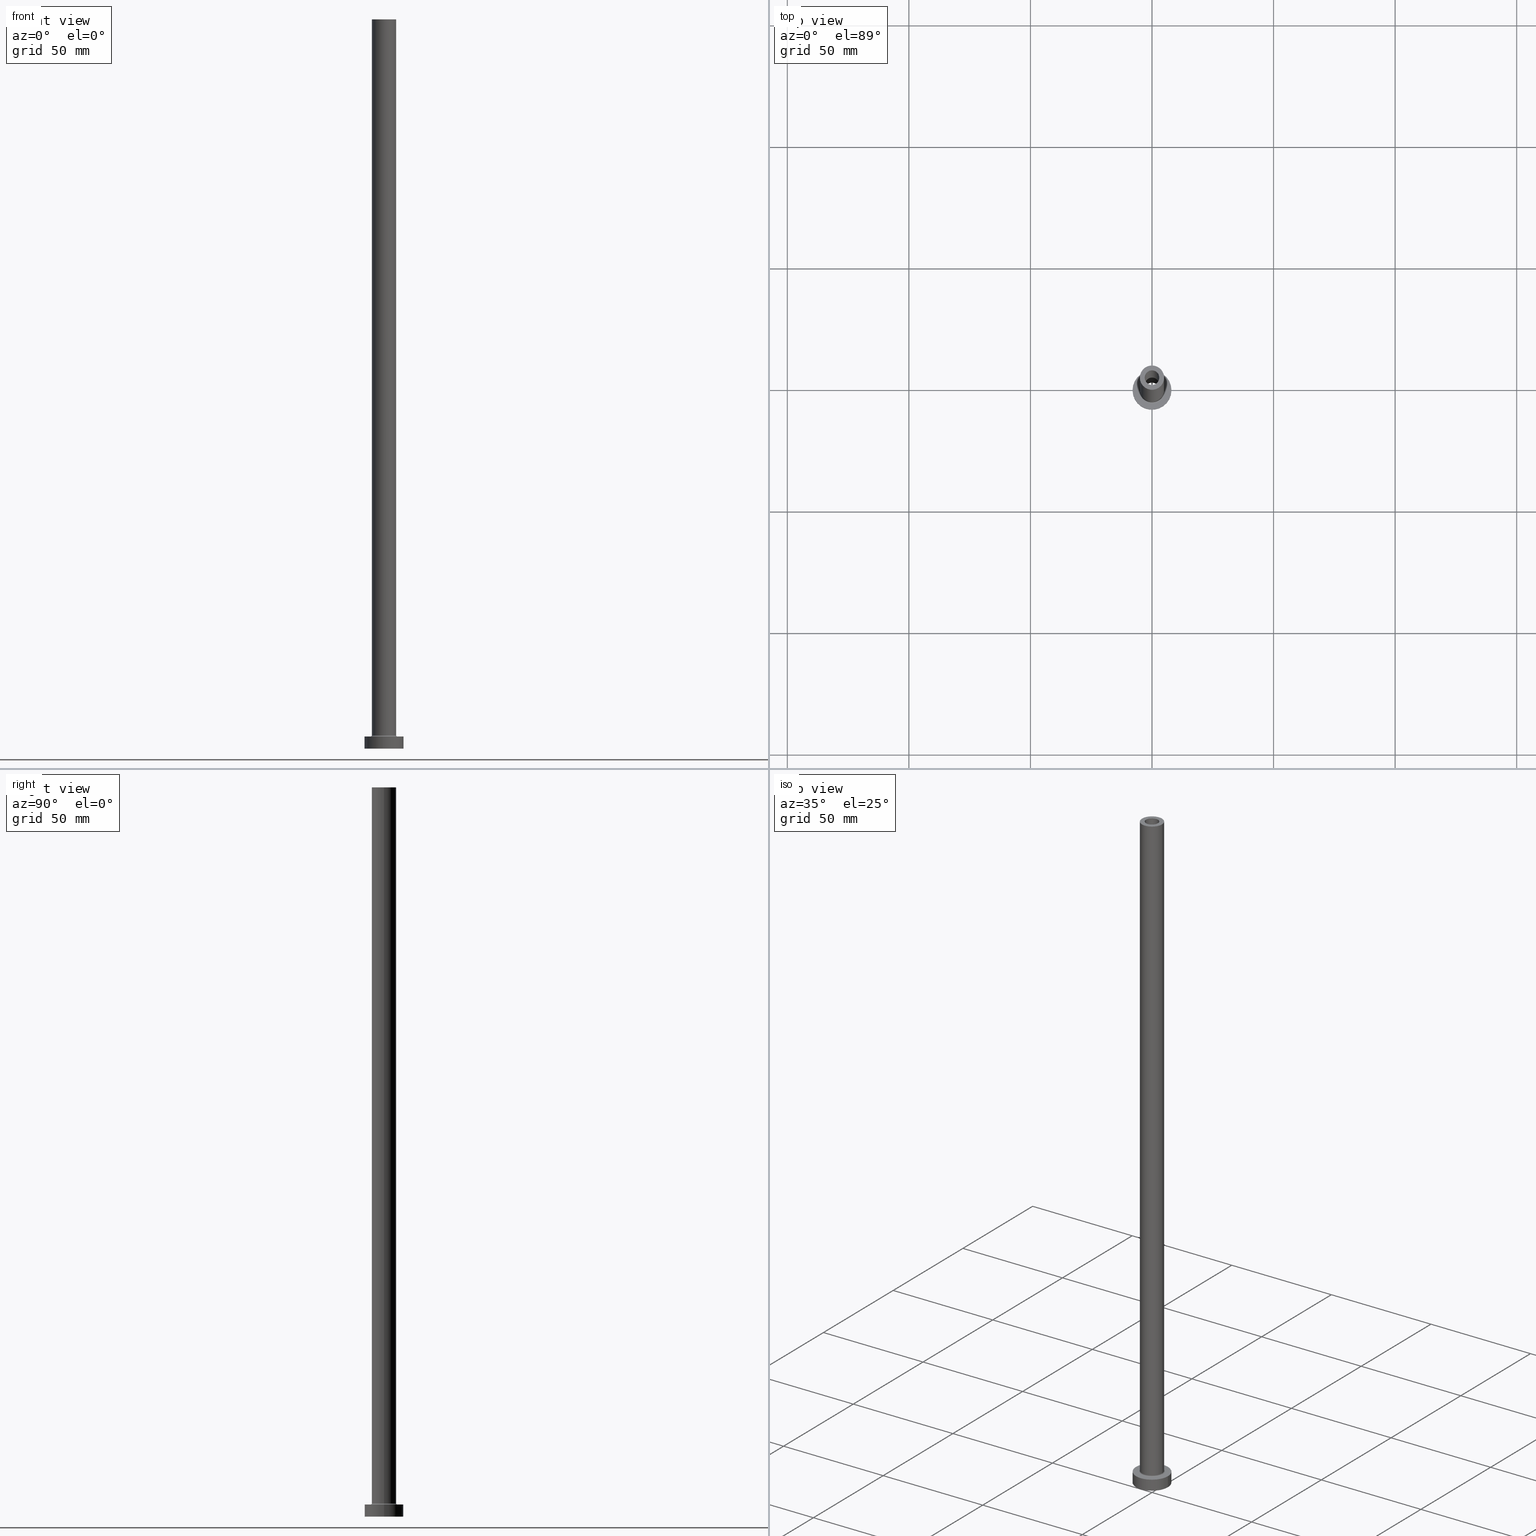
[diagram: canonical four-view strip — front | top / right | iso, engineering-drawing reading convention]
A machine part, canonical four-view strip (front | top / right | iso — engineering-drawing reading convention). The complete STEP part file that produces these views, byte-faithful:
ISO-10303-21;
HEADER;
FILE_DESCRIPTION (( 'STEP AP203' ),
    '1' );
FILE_NAME ('a672.STEP',
    '2023-02-13T15:31:03',
    ( '' ),
    ( '' ),
    'SwSTEP 2.0',
    'SolidWorks 2019',
    '' );
FILE_SCHEMA (( 'CONFIG_CONTROL_DESIGN' ));
ENDSEC;

DATA;
#1 = CARTESIAN_POINT ( 'NONE',  ( -5.500000000000000000, 6.735557395310442023E-16, 5.500000000000005329 ) ) ;
#2 = DIRECTION ( 'NONE',  ( -0.000000000000000000, -0.000000000000000000, -1.000000000000000000 ) ) ;
#3 = AXIS2_PLACEMENT_3D ( 'NONE', #237, #171, #411 ) ;
#4 = ORIENTED_EDGE ( 'NONE', *, *, #321, .F. ) ;
#5 = ORIENTED_EDGE ( 'NONE', *, *, #281, .T. ) ;
#6 = CYLINDRICAL_SURFACE ( 'NONE', #430, 8.000000000000000000 ) ;
#7 = CIRCLE ( 'NONE', #267, 8.000000000000000000 ) ;
#8 = DIRECTION ( 'NONE',  ( 0.000000000000000000, -1.000000000000000000, 0.000000000000000000 ) ) ;
#9 = CC_DESIGN_DATE_AND_TIME_ASSIGNMENT ( #201, #313, ( #78 ) ) ;
#10 = PRODUCT ( 'a672', 'a672', '', ( #163 ) ) ;
#11 = CARTESIAN_POINT ( 'NONE',  ( 0.000000000000000000, 0.000000000000000000, 0.000000000000000000 ) ) ;
#12 = AXIS2_PLACEMENT_3D ( 'NONE', #35, #395, #247 ) ;
#13 = CARTESIAN_POINT ( 'NONE',  ( 3.000000000000000444, 3.673940397442059868E-16, 300.0000000000000000 ) ) ;
#14 = ORGANIZATION ( 'NEUR�EN�', 'NEUR�EN�', '' ) ;
#15 = DIRECTION ( 'NONE',  ( 0.000000000000000000, 0.000000000000000000, 1.000000000000000000 ) ) ;
#16 = DIRECTION ( 'NONE',  ( 0.000000000000000000, 0.000000000000000000, 1.000000000000000000 ) ) ;
#17 = ORIENTED_EDGE ( 'NONE', *, *, #428, .T. ) ;
#18 = CALENDAR_DATE ( 2023, 13, 2 ) ;
#19 = DIRECTION ( 'NONE',  ( 0.000000000000000000, 0.000000000000000000, 1.000000000000000000 ) ) ;
#20 = AXIS2_PLACEMENT_3D ( 'NONE', #175, #209, #314 ) ;
#21 = CC_DESIGN_APPROVAL ( #273, ( #449 ) ) ;
#22 = CARTESIAN_POINT ( 'NONE',  ( 5.500000000000000000, 0.000000000000000000, 5.000000000000002665 ) ) ;
#23 = ORIENTED_EDGE ( 'NONE', *, *, #340, .T. ) ;
#24 = EDGE_CURVE ( 'NONE', #109, #131, #107, .T. ) ;
#25 = DIRECTION ( 'NONE',  ( 1.000000000000000000, 0.000000000000000000, 0.000000000000000000 ) ) ;
#26 =( NAMED_UNIT ( * ) SI_UNIT ( $, .STERADIAN. ) SOLID_ANGLE_UNIT ( ) );
#27 = CIRCLE ( 'NONE', #85, 3.000000000000000444 ) ;
#28 = CARTESIAN_POINT ( 'NONE',  ( 3.150000000000000355, 3.857637417314163182E-16, 263.9095454429505594 ) ) ;
#29 = ORIENTED_EDGE ( 'NONE', *, *, #205, .T. ) ;
#30 = DATE_AND_TIME ( #54, #82 ) ;
#31 =( LENGTH_UNIT ( ) NAMED_UNIT ( * ) SI_UNIT ( .MILLI., .METRE. ) );
#32 = CIRCLE ( 'NONE', #108, 5.000000000000000000 ) ;
#33 = ORIENTED_EDGE ( 'NONE', *, *, #435, .F. ) ;
#34 = CYLINDRICAL_SURFACE ( 'NONE', #343, 3.000000000000000444 ) ;
#35 = CARTESIAN_POINT ( 'NONE',  ( 0.000000000000000000, 0.000000000000000000, 300.0000000000000000 ) ) ;
#36 = TOROIDAL_SURFACE ( 'NONE', #112, 5.500000000000000000, 0.5000000000000000000 ) ;
#37 = CARTESIAN_POINT ( 'NONE',  ( 3.150000000000000355, 3.857637417314163182E-16, 255.0000000000000000 ) ) ;
#38 = EDGE_LOOP ( 'NONE', ( #232, #382 ) ) ;
#39 = AXIS2_PLACEMENT_3D ( 'NONE', #189, #330, #443 ) ;
#40 = CC_DESIGN_APPROVAL ( #324, ( #249 ) ) ;
#41 = ORIENTED_EDGE ( 'NONE', *, *, #190, .T. ) ;
#42 = DIRECTION ( 'NONE',  ( 0.000000000000000000, 0.000000000000000000, 1.000000000000000000 ) ) ;
#43 = DIRECTION ( 'NONE',  ( -1.000000000000000000, 0.000000000000000000, 0.000000000000000000 ) ) ;
#44 = AXIS2_PLACEMENT_3D ( 'NONE', #384, #124, #448 ) ;
#45 = EDGE_CURVE ( 'NONE', #140, #272, #235, .T. ) ;
#46 = APPLICATION_CONTEXT ( 'configuration controlled 3d designs of mechanical parts and assemblies' ) ;
#47 = DIRECTION ( 'NONE',  ( 1.000000000000000000, 0.000000000000000000, 0.000000000000000000 ) ) ;
#48 = DIRECTION ( 'NONE',  ( 1.000000000000000000, 0.000000000000000000, 0.000000000000000000 ) ) ;
#49 = FACE_OUTER_BOUND ( 'NONE', #168, .T. ) ;
#50 = LINE ( 'NONE', #193, #138 ) ;
#51 = EDGE_CURVE ( 'NONE', #98, #109, #79, .T. ) ;
#52 = DATE_AND_TIME ( #379, #74 ) ;
#53 = CARTESIAN_POINT ( 'NONE',  ( -5.000000000000000000, 0.000000000000000000, 300.0000000000000000 ) ) ;
#54 = CALENDAR_DATE ( 2023, 13, 2 ) ;
#55 = CARTESIAN_POINT ( 'NONE',  ( 3.000000000000000444, 3.673940397442059868E-16, 300.0000000000000000 ) ) ;
#56 = EDGE_LOOP ( 'NONE', ( #144, #417, #184, #286 ) ) ;
#57 = APPROVAL_DATE_TIME ( #236, #324 ) ;
#58 = AXIS2_PLACEMENT_3D ( 'NONE', #258, #441, #264 ) ;
#59 = DIRECTION ( 'NONE',  ( 0.000000000000000000, 0.000000000000000000, -1.000000000000000000 ) ) ;
#60 = VERTEX_POINT ( 'NONE', #217 ) ;
#61 = LINE ( 'NONE', #206, #381 ) ;
#62 = ORIENTED_EDGE ( 'NONE', *, *, #387, .T. ) ;
#63 = COORDINATED_UNIVERSAL_TIME_OFFSET ( 1, 0, .AHEAD. ) ;
#64 = AXIS2_PLACEMENT_3D ( 'NONE', #431, #407, #326 ) ;
#65 = CARTESIAN_POINT ( 'NONE',  ( 0.000000000000000000, 0.000000000000000000, 300.0000000000000000 ) ) ;
#66 = DIRECTION ( 'NONE',  ( -1.000000000000000000, 1.224646799147351482E-16, 0.000000000000000000 ) ) ;
#67 = CIRCLE ( 'NONE', #187, 3.000000000000000444 ) ;
#68 = DIRECTION ( 'NONE',  ( 0.000000000000000000, 0.000000000000000000, 1.000000000000000000 ) ) ;
#69 = DIRECTION ( 'NONE',  ( 0.000000000000000000, 0.000000000000000000, 1.000000000000000000 ) ) ;
#70 = AXIS2_PLACEMENT_3D ( 'NONE', #355, #2, #146 ) ;
#71 = EDGE_LOOP ( 'NONE', ( #94, #150 ) ) ;
#72 = EDGE_CURVE ( 'NONE', #140, #253, #354, .T. ) ;
#73 = ORIENTED_EDGE ( 'NONE', *, *, #190, .F. ) ;
#74 = LOCAL_TIME ( 16, 31, 3.000000000000000000, #63 ) ;
#75 = FACE_BOUND ( 'NONE', #71, .T. ) ;
#76 = MANIFOLD_SOLID_BREP ( 'Odebrat vysunut�m4', #263 ) ;
#77 = CARTESIAN_POINT ( 'NONE',  ( 0.000000000000000000, 0.000000000000000000, 5.000000000000000000 ) ) ;
#78 = PRODUCT_DEFINITION ( 'NEZN�M�', '', #449, #212 ) ;
#79 = CIRCLE ( 'NONE', #291, 3.150000000000000355 ) ;
#80 = CYLINDRICAL_SURFACE ( 'NONE', #325, 8.000000000000000000 ) ;
#81 = VECTOR ( 'NONE', #452, 1000.000000000000000 ) ;
#82 = LOCAL_TIME ( 16, 31, 3.000000000000000000, #142 ) ;
#83 = PLANE ( 'NONE',  #297 ) ;
#84 = CARTESIAN_POINT ( 'NONE',  ( 0.000000000000000000, 0.000000000000000000, 5.000000000000000000 ) ) ;
#85 = AXIS2_PLACEMENT_3D ( 'NONE', #155, #156, #192 ) ;
#86 = ADVANCED_FACE ( 'NONE', ( #318 ), #36, .F. ) ;
#87 = FACE_OUTER_BOUND ( 'NONE', #315, .T. ) ;
#88 = AXIS2_PLACEMENT_3D ( 'NONE', #455, #372, #136 ) ;
#89 = CC_DESIGN_SECURITY_CLASSIFICATION ( #249, ( #449 ) ) ;
#90 = FACE_BOUND ( 'NONE', #151, .T. ) ;
#91 = ORIENTED_EDGE ( 'NONE', *, *, #296, .F. ) ;
#92 = DATE_TIME_ROLE ( 'classification_date' ) ;
#93 = DIRECTION ( 'NONE',  ( -0.000000000000000000, -0.000000000000000000, -1.000000000000000000 ) ) ;
#94 = ORIENTED_EDGE ( 'NONE', *, *, #281, .F. ) ;
#95 = EDGE_CURVE ( 'NONE', #390, #322, #368, .T. ) ;
#96 = COORDINATED_UNIVERSAL_TIME_OFFSET ( 1, 0, .AHEAD. ) ;
#97 = DIRECTION ( 'NONE',  ( 0.000000000000000000, 0.000000000000000000, -1.000000000000000000 ) ) ;
#98 = VERTEX_POINT ( 'NONE', #37 ) ;
#99 = PERSON_AND_ORGANIZATION_ROLE ( 'classification_officer' ) ;
#100 = AXIS2_PLACEMENT_3D ( 'NONE', #388, #282, #426 ) ;
#101 = CARTESIAN_POINT ( 'NONE',  ( -5.500000000000000000, 6.735557395310442023E-16, 5.000000000000002665 ) ) ;
#102 = ORIENTED_EDGE ( 'NONE', *, *, #45, .F. ) ;
#103 = APPROVAL_STATUS ( 'not_yet_approved' ) ;
#104 = LINE ( 'NONE', #106, #393 ) ;
#105 = EDGE_LOOP ( 'NONE', ( #176, #252 ) ) ;
#106 = CARTESIAN_POINT ( 'NONE',  ( 8.000000000000000000, 9.797174393178825657E-16, 5.000000000000000000 ) ) ;
#107 = LINE ( 'NONE', #114, #362 ) ;
#108 = AXIS2_PLACEMENT_3D ( 'NONE', #335, #16, #271 ) ;
#109 = VERTEX_POINT ( 'NONE', #180 ) ;
#110 = ORIENTED_EDGE ( 'NONE', *, *, #129, .F. ) ;
#111 = ADVANCED_FACE ( 'NONE', ( #149 ), #285, .T. ) ;
#112 = AXIS2_PLACEMENT_3D ( 'NONE', #429, #69, #216 ) ;
#113 = ORIENTED_EDGE ( 'NONE', *, *, #327, .T. ) ;
#114 = CARTESIAN_POINT ( 'NONE',  ( -3.150000000000000355, 0.000000000000000000, 263.9095454429505594 ) ) ;
#115 = AXIS2_PLACEMENT_3D ( 'NONE', #405, #438, #123 ) ;
#116 = ADVANCED_FACE ( 'NONE', ( #295 ), #80, .T. ) ;
#117 = CARTESIAN_POINT ( 'NONE',  ( -3.150000000000000355, 0.000000000000000000, 0.000000000000000000 ) ) ;
#118 = DIRECTION ( 'NONE',  ( -1.000000000000000000, 0.000000000000000000, 0.000000000000000000 ) ) ;
#119 = CARTESIAN_POINT ( 'NONE',  ( 5.500000000000000000, 0.000000000000000000, 5.500000000000005329 ) ) ;
#120 = CIRCLE ( 'NONE', #58, 3.150000000000000355 ) ;
#121 = FACE_BOUND ( 'NONE', #306, .T. ) ;
#122 = EDGE_CURVE ( 'NONE', #415, #214, #27, .T. ) ;
#123 = DIRECTION ( 'NONE',  ( 1.000000000000000000, 0.000000000000000000, -0.000000000000000000 ) ) ;
#124 = DIRECTION ( 'NONE',  ( -0.000000000000000000, -0.000000000000000000, -1.000000000000000000 ) ) ;
#125 = ORIENTED_EDGE ( 'NONE', *, *, #72, .T. ) ;
#126 = TOROIDAL_SURFACE ( 'NONE', #100, 5.500000000000000000, 0.5000000000000000000 ) ;
#127 = VECTOR ( 'NONE', #59, 1000.000000000000000 ) ;
#128 = PERSON_AND_ORGANIZATION ( #143, #14 ) ;
#129 = EDGE_CURVE ( 'NONE', #253, #322, #389, .T. ) ;
#130 = FACE_OUTER_BOUND ( 'NONE', #219, .T. ) ;
#131 = VERTEX_POINT ( 'NONE', #117 ) ;
#132 = LINE ( 'NONE', #28, #127 ) ;
#133 = EDGE_LOOP ( 'NONE', ( #170, #276 ) ) ;
#134 = DIRECTION ( 'NONE',  ( 1.000000000000000000, 0.000000000000000000, 0.000000000000000000 ) ) ;
#135 = ADVANCED_BREP_SHAPE_REPRESENTATION ( 'a672', ( #76, #218 ), #293 ) ;
#136 = DIRECTION ( 'NONE',  ( -1.000000000000000000, 0.000000000000000000, 0.000000000000000000 ) ) ;
#137 = CARTESIAN_POINT ( 'NONE',  ( 0.000000000000000000, 0.000000000000000000, 0.000000000000000000 ) ) ;
#138 = VECTOR ( 'NONE', #93, 1000.000000000000000 ) ;
#139 = CARTESIAN_POINT ( 'NONE',  ( -8.000000000000000000, 0.000000000000000000, 5.000000000000000000 ) ) ;
#140 = VERTEX_POINT ( 'NONE', #191 ) ;
#141 = ADVANCED_FACE ( 'NONE', ( #294, #159 ), #83, .T. ) ;
#142 = COORDINATED_UNIVERSAL_TIME_OFFSET ( 1, 0, .AHEAD. ) ;
#143 = PERSON ( 'NEUR�EN�', 'NEUR�EN�', 'NEUR�EN�', ('NEUR�EN�'), ('NEUR�EN�'), ('NEUR�EN�') ) ;
#144 = ORIENTED_EDGE ( 'NONE', *, *, #428, .F. ) ;
#145 = DIRECTION ( 'NONE',  ( -1.000000000000000000, 0.000000000000000000, 0.000000000000000000 ) ) ;
#146 = DIRECTION ( 'NONE',  ( 1.000000000000000000, 0.000000000000000000, 0.000000000000000000 ) ) ;
#147 = APPROVAL_PERSON_ORGANIZATION ( #341, #324, #451 ) ;
#148 = CC_DESIGN_PERSON_AND_ORGANIZATION_ASSIGNMENT ( #128, #425, ( #449 ) ) ;
#149 = FACE_OUTER_BOUND ( 'NONE', #444, .T. ) ;
#150 = ORIENTED_EDGE ( 'NONE', *, *, #215, .F. ) ;
#151 = EDGE_LOOP ( 'NONE', ( #172, #242 ) ) ;
#152 = ADVANCED_FACE ( 'NONE', ( #121, #401 ), #360, .F. ) ;
#153 = CARTESIAN_POINT ( 'NONE',  ( -3.000000000000000444, 0.000000000000000000, 255.0000000000000000 ) ) ;
#154 = PLANE ( 'NONE',  #358 ) ;
#155 = CARTESIAN_POINT ( 'NONE',  ( 0.000000000000000000, 0.000000000000000000, 300.0000000000000000 ) ) ;
#156 = DIRECTION ( 'NONE',  ( 0.000000000000000000, 0.000000000000000000, 1.000000000000000000 ) ) ;
#157 = CC_DESIGN_PERSON_AND_ORGANIZATION_ASSIGNMENT ( #230, #99, ( #249 ) ) ;
#158 = AXIS2_PLACEMENT_3D ( 'NONE', #11, #440, #262 ) ;
#159 = FACE_OUTER_BOUND ( 'NONE', #323, .T. ) ;
#160 = DIRECTION ( 'NONE',  ( -1.000000000000000000, 0.000000000000000000, 0.000000000000000000 ) ) ;
#161 = EDGE_LOOP ( 'NONE', ( #200, #301, #424, #287 ) ) ;
#162 = CC_DESIGN_PERSON_AND_ORGANIZATION_ASSIGNMENT ( #422, #337, ( #10 ) ) ;
#163 = MECHANICAL_CONTEXT ( 'NONE', #46, 'mechanical' ) ;
#164 = DIRECTION ( 'NONE',  ( -0.000000000000000000, -0.000000000000000000, -1.000000000000000000 ) ) ;
#165 = EDGE_LOOP ( 'NONE', ( #359, #270 ) ) ;
#166 = AXIS2_PLACEMENT_3D ( 'NONE', #1, #177, #66 ) ;
#167 = CARTESIAN_POINT ( 'NONE',  ( 0.000000000000000000, 0.000000000000000000, 300.0000000000000000 ) ) ;
#168 = EDGE_LOOP ( 'NONE', ( #33, #17, #29, #344 ) ) ;
#169 = CARTESIAN_POINT ( 'NONE',  ( -5.000000000000000000, 0.000000000000000000, 5.500000000000005329 ) ) ;
#170 = ORIENTED_EDGE ( 'NONE', *, *, #387, .F. ) ;
#171 = DIRECTION ( 'NONE',  ( 0.000000000000000000, 0.000000000000000000, 1.000000000000000000 ) ) ;
#172 = ORIENTED_EDGE ( 'NONE', *, *, #122, .F. ) ;
#173 = APPROVAL_DATE_TIME ( #30, #273 ) ;
#174 = VECTOR ( 'NONE', #305, 1000.000000000000000 ) ;
#175 = CARTESIAN_POINT ( 'NONE',  ( 0.000000000000000000, 0.000000000000000000, 5.500000000000005329 ) ) ;
#176 = ORIENTED_EDGE ( 'NONE', *, *, #265, .T. ) ;
#177 = DIRECTION ( 'NONE',  ( 1.224646799147353207E-16, 1.000000000000000000, -0.000000000000000000 ) ) ;
#178 = CARTESIAN_POINT ( 'NONE',  ( 5.000000000000000000, 6.123233995736766282E-16, 300.0000000000000000 ) ) ;
#179 = CC_DESIGN_PERSON_AND_ORGANIZATION_ASSIGNMENT ( #240, #386, ( #78 ) ) ;
#180 = CARTESIAN_POINT ( 'NONE',  ( -3.150000000000000355, 0.000000000000000000, 255.0000000000000000 ) ) ;
#181 = AXIS2_PLACEMENT_3D ( 'NONE', #366, #42, #48 ) ;
#182 = LOCAL_TIME ( 16, 31, 3.000000000000000000, #96 ) ;
#183 = ORIENTED_EDGE ( 'NONE', *, *, #95, .F. ) ;
#184 = ORIENTED_EDGE ( 'NONE', *, *, #410, .T. ) ;
#185 = CARTESIAN_POINT ( 'NONE',  ( 0.000000000000000000, 0.000000000000000000, 0.000000000000000000 ) ) ;
#186 = EDGE_CURVE ( 'NONE', #378, #197, #288, .T. ) ;
#187 = AXIS2_PLACEMENT_3D ( 'NONE', #167, #19, #266 ) ;
#188 = CARTESIAN_POINT ( 'NONE',  ( 0.000000000000000000, 0.000000000000000000, 300.0000000000000000 ) ) ;
#189 = CARTESIAN_POINT ( 'NONE',  ( 0.000000000000000000, 0.000000000000000000, 5.000000000000000000 ) ) ;
#190 = EDGE_CURVE ( 'NONE', #197, #378, #409, .T. ) ;
#191 = CARTESIAN_POINT ( 'NONE',  ( 5.000000000000000000, 6.123233995736766282E-16, 300.0000000000000000 ) ) ;
#192 = DIRECTION ( 'NONE',  ( 1.000000000000000000, 0.000000000000000000, 0.000000000000000000 ) ) ;
#193 = CARTESIAN_POINT ( 'NONE',  ( -8.000000000000000000, 0.000000000000000000, 5.000000000000000000 ) ) ;
#194 = ADVANCED_FACE ( 'NONE', ( #49 ), #6, .T. ) ;
#195 = APPROVAL_STATUS ( 'not_yet_approved' ) ;
#196 = LINE ( 'NONE', #338, #81 ) ;
#197 = VERTEX_POINT ( 'NONE', #153 ) ;
#198 = COORDINATED_UNIVERSAL_TIME_OFFSET ( 1, 0, .AHEAD. ) ;
#199 = CYLINDRICAL_SURFACE ( 'NONE', #371, 3.150000000000000355 ) ;
#200 = ORIENTED_EDGE ( 'NONE', *, *, #361, .F. ) ;
#201 = DATE_AND_TIME ( #376, #404 ) ;
#202 = CARTESIAN_POINT ( 'NONE',  ( 0.000000000000000000, 0.000000000000000000, 5.000000000000000000 ) ) ;
#203 = ORIENTED_EDGE ( 'NONE', *, *, #296, .T. ) ;
#204 =( NAMED_UNIT ( * ) PLANE_ANGLE_UNIT ( ) SI_UNIT ( $, .RADIAN. ) );
#205 = EDGE_CURVE ( 'NONE', #210, #459, #312, .T. ) ;
#206 = CARTESIAN_POINT ( 'NONE',  ( -5.000000000000000000, 0.000000000000000000, 300.0000000000000000 ) ) ;
#207 = VECTOR ( 'NONE', #357, 1000.000000000000000 ) ;
#208 = PERSON_AND_ORGANIZATION ( #143, #14 ) ;
#209 = DIRECTION ( 'NONE',  ( 0.000000000000000000, 0.000000000000000000, 1.000000000000000000 ) ) ;
#210 = VERTEX_POINT ( 'NONE', #260 ) ;
#211 = AXIS2_PLACEMENT_3D ( 'NONE', #188, #290, #118 ) ;
#212 = DESIGN_CONTEXT ( 'detailed design', #304, 'design' ) ;
#213 = FACE_OUTER_BOUND ( 'NONE', #161, .T. ) ;
#214 = VERTEX_POINT ( 'NONE', #13 ) ;
#215 = EDGE_CURVE ( 'NONE', #336, #131, #120, .T. ) ;
#216 = DIRECTION ( 'NONE',  ( 1.000000000000000000, 0.000000000000000000, 0.000000000000000000 ) ) ;
#217 = CARTESIAN_POINT ( 'NONE',  ( 8.000000000000000000, 9.797174393178825657E-16, 5.000000000000000000 ) ) ;
#218 = AXIS2_PLACEMENT_3D ( 'NONE', #137, #278, #134 ) ;
#219 = EDGE_LOOP ( 'NONE', ( #284, #339, #203, #309 ) ) ;
#220 = FACE_OUTER_BOUND ( 'NONE', #165, .T. ) ;
#221 = FACE_OUTER_BOUND ( 'NONE', #432, .T. ) ;
#222 = CIRCLE ( 'NONE', #20, 5.000000000000000000 ) ;
#223 = CARTESIAN_POINT ( 'NONE',  ( 0.000000000000000000, 0.000000000000000000, 0.000000000000000000 ) ) ;
#224 = CC_DESIGN_PERSON_AND_ORGANIZATION_ASSIGNMENT ( #460, #445, ( #449 ) ) ;
#225 = CARTESIAN_POINT ( 'NONE',  ( 0.000000000000000000, 0.000000000000000000, 255.0000000000000000 ) ) ;
#226 = UNCERTAINTY_MEASURE_WITH_UNIT (LENGTH_MEASURE( 1.000000000000000082E-05 ), #31, 'distance_accuracy_value', 'NONE');
#227 = DIRECTION ( 'NONE',  ( 0.000000000000000000, 0.000000000000000000, 1.000000000000000000 ) ) ;
#228 = CYLINDRICAL_SURFACE ( 'NONE', #320, 5.000000000000000000 ) ;
#229 = CIRCLE ( 'NONE', #394, 5.000000000000000000 ) ;
#230 = PERSON_AND_ORGANIZATION ( #143, #14 ) ;
#231 = FACE_OUTER_BOUND ( 'NONE', #38, .T. ) ;
#232 = ORIENTED_EDGE ( 'NONE', *, *, #303, .T. ) ;
#233 = DIRECTION ( 'NONE',  ( 1.000000000000000000, 0.000000000000000000, 0.000000000000000000 ) ) ;
#234 = ORIENTED_EDGE ( 'NONE', *, *, #442, .F. ) ;
#235 = CIRCLE ( 'NONE', #12, 5.000000000000000000 ) ;
#236 = DATE_AND_TIME ( #383, #182 ) ;
#237 = CARTESIAN_POINT ( 'NONE',  ( 0.000000000000000000, 0.000000000000000000, 300.0000000000000000 ) ) ;
#238 = ORIENTED_EDGE ( 'NONE', *, *, #265, .F. ) ;
#239 = ADVANCED_FACE ( 'NONE', ( #75, #220 ), #154, .F. ) ;
#240 = PERSON_AND_ORGANIZATION ( #143, #14 ) ;
#241 = CARTESIAN_POINT ( 'NONE',  ( 0.000000000000000000, 0.000000000000000000, 255.0000000000000000 ) ) ;
#242 = ORIENTED_EDGE ( 'NONE', *, *, #334, .F. ) ;
#243 = APPROVAL_DATE_TIME ( #52, #259 ) ;
#244 = ORIENTED_EDGE ( 'NONE', *, *, #122, .T. ) ;
#245 = AXIS2_PLACEMENT_3D ( 'NONE', #119, #8, #257 ) ;
#246 = ADVANCED_FACE ( 'NONE', ( #221 ), #363, .F. ) ;
#247 = DIRECTION ( 'NONE',  ( 1.000000000000000000, 0.000000000000000000, 0.000000000000000000 ) ) ;
#248 = CIRCLE ( 'NONE', #446, 8.000000000000000000 ) ;
#249 = SECURITY_CLASSIFICATION ( '', '', #307 ) ;
#250 = ORIENTED_EDGE ( 'NONE', *, *, #129, .T. ) ;
#251 = PRODUCT_RELATED_PRODUCT_CATEGORY ( 'detail', '', ( #10 ) ) ;
#252 = ORIENTED_EDGE ( 'NONE', *, *, #95, .T. ) ;
#253 = VERTEX_POINT ( 'NONE', #402 ) ;
#254 = EDGE_CURVE ( 'NONE', #459, #210, #7, .T. ) ;
#255 = AXIS2_PLACEMENT_3D ( 'NONE', #202, #416, #348 ) ;
#256 = ORIENTED_EDGE ( 'NONE', *, *, #327, .F. ) ;
#257 = DIRECTION ( 'NONE',  ( 0.000000000000000000, 0.000000000000000000, -1.000000000000000000 ) ) ;
#258 = CARTESIAN_POINT ( 'NONE',  ( 0.000000000000000000, 0.000000000000000000, 0.000000000000000000 ) ) ;
#259 = APPROVAL ( #103, 'NEUR�EN�' ) ;
#260 = CARTESIAN_POINT ( 'NONE',  ( 8.000000000000000000, 9.797174393178825657E-16, 0.000000000000000000 ) ) ;
#261 = APPROVAL_PERSON_ORGANIZATION ( #208, #273, #349 ) ;
#262 = DIRECTION ( 'NONE',  ( 1.000000000000000000, 0.000000000000000000, 0.000000000000000000 ) ) ;
#263 = CLOSED_SHELL ( 'NONE', ( #246, #406, #86, #111, #194, #116, #141, #239, #375, #367, #421, #356, #152, #456 ) ) ;
#264 = DIRECTION ( 'NONE',  ( 1.000000000000000000, 0.000000000000000000, 0.000000000000000000 ) ) ;
#265 = EDGE_CURVE ( 'NONE', #322, #390, #458, .T. ) ;
#266 = DIRECTION ( 'NONE',  ( 1.000000000000000000, 0.000000000000000000, 0.000000000000000000 ) ) ;
#267 = AXIS2_PLACEMENT_3D ( 'NONE', #223, #365, #47 ) ;
#268 = ORIENTED_EDGE ( 'NONE', *, *, #24, .F. ) ;
#269 = DIRECTION ( 'NONE',  ( 0.000000000000000000, 0.000000000000000000, 1.000000000000000000 ) ) ;
#270 = ORIENTED_EDGE ( 'NONE', *, *, #205, .F. ) ;
#271 = DIRECTION ( 'NONE',  ( 1.000000000000000000, 0.000000000000000000, 0.000000000000000000 ) ) ;
#272 = VERTEX_POINT ( 'NONE', #53 ) ;
#273 = APPROVAL ( #195, 'NEUR�EN�' ) ;
#274 = APPLICATION_PROTOCOL_DEFINITION ( 'international standard', 'config_control_design', 1994, #46 ) ;
#275 = CARTESIAN_POINT ( 'NONE',  ( -3.000000000000000444, 0.000000000000000000, 300.0000000000000000 ) ) ;
#276 = ORIENTED_EDGE ( 'NONE', *, *, #51, .F. ) ;
#277 = APPROVAL_PERSON_ORGANIZATION ( #280, #259, #373 ) ;
#278 = DIRECTION ( 'NONE',  ( 0.000000000000000000, 0.000000000000000000, 1.000000000000000000 ) ) ;
#279 = CARTESIAN_POINT ( 'NONE',  ( -8.000000000000000000, 0.000000000000000000, 0.000000000000000000 ) ) ;
#280 = PERSON_AND_ORGANIZATION ( #143, #14 ) ;
#281 = EDGE_CURVE ( 'NONE', #131, #336, #403, .T. ) ;
#282 = DIRECTION ( 'NONE',  ( 0.000000000000000000, 0.000000000000000000, 1.000000000000000000 ) ) ;
#283 = ORIENTED_EDGE ( 'NONE', *, *, #186, .T. ) ;
#284 = ORIENTED_EDGE ( 'NONE', *, *, #72, .F. ) ;
#285 = CYLINDRICAL_SURFACE ( 'NONE', #64, 5.000000000000000000 ) ;
#286 = ORIENTED_EDGE ( 'NONE', *, *, #254, .T. ) ;
#287 = ORIENTED_EDGE ( 'NONE', *, *, #186, .F. ) ;
#288 = CIRCLE ( 'NONE', #352, 3.000000000000000444 ) ;
#289 = DIRECTION ( 'NONE',  ( 0.000000000000000000, 0.000000000000000000, 1.000000000000000000 ) ) ;
#290 = DIRECTION ( 'NONE',  ( 0.000000000000000000, 0.000000000000000000, -1.000000000000000000 ) ) ;
#291 = AXIS2_PLACEMENT_3D ( 'NONE', #392, #68, #397 ) ;
#292 = DIRECTION ( 'NONE',  ( 1.000000000000000000, 0.000000000000000000, -0.000000000000000000 ) ) ;
#293 =( GEOMETRIC_REPRESENTATION_CONTEXT ( 3 ) GLOBAL_UNCERTAINTY_ASSIGNED_CONTEXT ( ( #226 ) ) GLOBAL_UNIT_ASSIGNED_CONTEXT ( ( #31, #204, #26 ) ) REPRESENTATION_CONTEXT ( 'NONE', 'WORKASPACE' ) );
#294 = FACE_BOUND ( 'NONE', #105, .T. ) ;
#295 = FACE_OUTER_BOUND ( 'NONE', #56, .T. ) ;
#296 = EDGE_CURVE ( 'NONE', #272, #299, #61, .T. ) ;
#297 = AXIS2_PLACEMENT_3D ( 'NONE', #332, #227, #292 ) ;
#298 = PLANE ( 'NONE',  #3 ) ;
#299 = VERTEX_POINT ( 'NONE', #169 ) ;
#300 = CARTESIAN_POINT ( 'NONE',  ( 3.150000000000000355, 3.857637417314163182E-16, 0.000000000000000000 ) ) ;
#301 = ORIENTED_EDGE ( 'NONE', *, *, #334, .T. ) ;
#302 = APPROVAL_STATUS ( 'not_yet_approved' ) ;
#303 = EDGE_CURVE ( 'NONE', #272, #140, #32, .T. ) ;
#304 = APPLICATION_CONTEXT ( 'configuration controlled 3d designs of mechanical parts and assemblies' ) ;
#305 = DIRECTION ( 'NONE',  ( 0.000000000000000000, 0.000000000000000000, -1.000000000000000000 ) ) ;
#306 = EDGE_LOOP ( 'NONE', ( #41, #283 ) ) ;
#307 = SECURITY_CLASSIFICATION_LEVEL ( 'unclassified' ) ;
#308 = CYLINDRICAL_SURFACE ( 'NONE', #88, 3.150000000000000355 ) ;
#309 = ORIENTED_EDGE ( 'NONE', *, *, #396, .T. ) ;
#310 = DIRECTION ( 'NONE',  ( -1.000000000000000000, 0.000000000000000000, 0.000000000000000000 ) ) ;
#311 = EDGE_LOOP ( 'NONE', ( #62, #113, #347, #268 ) ) ;
#312 = CIRCLE ( 'NONE', #158, 8.000000000000000000 ) ;
#313 = DATE_TIME_ROLE ( 'creation_date' ) ;
#314 = DIRECTION ( 'NONE',  ( 1.000000000000000000, 0.000000000000000000, 0.000000000000000000 ) ) ;
#315 = EDGE_LOOP ( 'NONE', ( #256, #319, #461, #5 ) ) ;
#316 = PRODUCT_DEFINITION_SHAPE ( 'NONE', 'NONE',  #78 ) ;
#317 = DIRECTION ( 'NONE',  ( 0.000000000000000000, 0.000000000000000000, 1.000000000000000000 ) ) ;
#318 = FACE_OUTER_BOUND ( 'NONE', #412, .T. ) ;
#319 = ORIENTED_EDGE ( 'NONE', *, *, #51, .T. ) ;
#320 = AXIS2_PLACEMENT_3D ( 'NONE', #419, #380, #310 ) ;
#321 = EDGE_CURVE ( 'NONE', #415, #197, #196, .T. ) ;
#322 = VERTEX_POINT ( 'NONE', #22 ) ;
#323 = EDGE_LOOP ( 'NONE', ( #23, #453 ) ) ;
#324 = APPROVAL ( #302, 'NEUR�EN�' ) ;
#325 = AXIS2_PLACEMENT_3D ( 'NONE', #84, #329, #43 ) ;
#326 = DIRECTION ( 'NONE',  ( -1.000000000000000000, 0.000000000000000000, 0.000000000000000000 ) ) ;
#327 = EDGE_CURVE ( 'NONE', #98, #336, #132, .T. ) ;
#328 = CIRCLE ( 'NONE', #255, 8.000000000000000000 ) ;
#329 = DIRECTION ( 'NONE',  ( -0.000000000000000000, -0.000000000000000000, -1.000000000000000000 ) ) ;
#330 = DIRECTION ( 'NONE',  ( -0.000000000000000000, -0.000000000000000000, -1.000000000000000000 ) ) ;
#331 = DIRECTION ( 'NONE',  ( -0.000000000000000000, -0.000000000000000000, -1.000000000000000000 ) ) ;
#332 = CARTESIAN_POINT ( 'NONE',  ( 0.000000000000000000, 0.000000000000000000, 5.000000000000000000 ) ) ;
#333 = LOCAL_TIME ( 16, 31, 3.000000000000000000, #198 ) ;
#334 = EDGE_CURVE ( 'NONE', #214, #415, #67, .T. ) ;
#335 = CARTESIAN_POINT ( 'NONE',  ( 0.000000000000000000, 0.000000000000000000, 300.0000000000000000 ) ) ;
#336 = VERTEX_POINT ( 'NONE', #300 ) ;
#337 = PERSON_AND_ORGANIZATION_ROLE ( 'design_owner' ) ;
#338 = CARTESIAN_POINT ( 'NONE',  ( -3.000000000000000444, 0.000000000000000000, 300.0000000000000000 ) ) ;
#339 = ORIENTED_EDGE ( 'NONE', *, *, #303, .F. ) ;
#340 = EDGE_CURVE ( 'NONE', #385, #60, #328, .T. ) ;
#341 = PERSON_AND_ORGANIZATION ( #143, #14 ) ;
#342 = CARTESIAN_POINT ( 'NONE',  ( 0.000000000000000000, 0.000000000000000000, 263.9095454429505594 ) ) ;
#343 = AXIS2_PLACEMENT_3D ( 'NONE', #65, #423, #145 ) ;
#344 = ORIENTED_EDGE ( 'NONE', *, *, #410, .F. ) ;
#345 = SHAPE_DEFINITION_REPRESENTATION ( #316, #135 ) ;
#346 = LINE ( 'NONE', #55, #174 ) ;
#347 = ORIENTED_EDGE ( 'NONE', *, *, #215, .T. ) ;
#348 = DIRECTION ( 'NONE',  ( 1.000000000000000000, 0.000000000000000000, 0.000000000000000000 ) ) ;
#349 = APPROVAL_ROLE ( '' ) ;
#350 = DIRECTION ( 'NONE',  ( -0.000000000000000000, -0.000000000000000000, -1.000000000000000000 ) ) ;
#351 = ORIENTED_EDGE ( 'NONE', *, *, #439, .F. ) ;
#352 = AXIS2_PLACEMENT_3D ( 'NONE', #225, #15, #369 ) ;
#353 = CARTESIAN_POINT ( 'NONE',  ( 0.000000000000000000, 0.000000000000000000, 5.000000000000000000 ) ) ;
#354 = LINE ( 'NONE', #178, #207 ) ;
#355 = CARTESIAN_POINT ( 'NONE',  ( 0.000000000000000000, 0.000000000000000000, 5.000000000000000000 ) ) ;
#356 = ADVANCED_FACE ( 'NONE', ( #87 ), #199, .F. ) ;
#357 = DIRECTION ( 'NONE',  ( -0.000000000000000000, -0.000000000000000000, -1.000000000000000000 ) ) ;
#358 = AXIS2_PLACEMENT_3D ( 'NONE', #185, #289, #436 ) ;
#359 = ORIENTED_EDGE ( 'NONE', *, *, #254, .F. ) ;
#360 = PLANE ( 'NONE',  #115 ) ;
#361 = EDGE_CURVE ( 'NONE', #214, #378, #346, .T. ) ;
#362 = VECTOR ( 'NONE', #427, 1000.000000000000000 ) ;
#363 = CYLINDRICAL_SURFACE ( 'NONE', #211, 3.000000000000000444 ) ;
#364 = CIRCLE ( 'NONE', #434, 3.150000000000000355 ) ;
#365 = DIRECTION ( 'NONE',  ( 0.000000000000000000, 0.000000000000000000, 1.000000000000000000 ) ) ;
#366 = CARTESIAN_POINT ( 'NONE',  ( 0.000000000000000000, 0.000000000000000000, 255.0000000000000000 ) ) ;
#367 = ADVANCED_FACE ( 'NONE', ( #90, #231 ), #298, .T. ) ;
#368 = CIRCLE ( 'NONE', #70, 5.500000000000000000 ) ;
#369 = DIRECTION ( 'NONE',  ( 1.000000000000000000, 0.000000000000000000, 0.000000000000000000 ) ) ;
#370 = CC_DESIGN_DATE_AND_TIME_ASSIGNMENT ( #413, #92, ( #249 ) ) ;
#371 = AXIS2_PLACEMENT_3D ( 'NONE', #342, #97, #160 ) ;
#372 = DIRECTION ( 'NONE',  ( 0.000000000000000000, 0.000000000000000000, -1.000000000000000000 ) ) ;
#373 = APPROVAL_ROLE ( '' ) ;
#374 = CARTESIAN_POINT ( 'NONE',  ( 0.000000000000000000, 0.000000000000000000, 5.500000000000005329 ) ) ;
#375 = ADVANCED_FACE ( 'NONE', ( #130 ), #228, .T. ) ;
#376 = CALENDAR_DATE ( 2023, 13, 2 ) ;
#377 = FACE_OUTER_BOUND ( 'NONE', #400, .T. ) ;
#378 = VERTEX_POINT ( 'NONE', #457 ) ;
#379 = CALENDAR_DATE ( 2023, 13, 2 ) ;
#380 = DIRECTION ( 'NONE',  ( -0.000000000000000000, -0.000000000000000000, -1.000000000000000000 ) ) ;
#381 = VECTOR ( 'NONE', #164, 1000.000000000000000 ) ;
#382 = ORIENTED_EDGE ( 'NONE', *, *, #45, .T. ) ;
#383 = CALENDAR_DATE ( 2023, 13, 2 ) ;
#384 = CARTESIAN_POINT ( 'NONE',  ( 0.000000000000000000, 0.000000000000000000, 0.000000000000000000 ) ) ;
#385 = VERTEX_POINT ( 'NONE', #139 ) ;
#386 = PERSON_AND_ORGANIZATION_ROLE ( 'creator' ) ;
#387 = EDGE_CURVE ( 'NONE', #109, #98, #364, .T. ) ;
#388 = CARTESIAN_POINT ( 'NONE',  ( 0.000000000000000000, 0.000000000000000000, 5.500000000000005329 ) ) ;
#389 = CIRCLE ( 'NONE', #245, 0.5000000000000004441 ) ;
#390 = VERTEX_POINT ( 'NONE', #101 ) ;
#391 = DIRECTION ( 'NONE',  ( 1.000000000000000000, 0.000000000000000000, 0.000000000000000000 ) ) ;
#392 = CARTESIAN_POINT ( 'NONE',  ( 0.000000000000000000, 0.000000000000000000, 255.0000000000000000 ) ) ;
#393 = VECTOR ( 'NONE', #350, 1000.000000000000000 ) ;
#394 = AXIS2_PLACEMENT_3D ( 'NONE', #374, #414, #233 ) ;
#395 = DIRECTION ( 'NONE',  ( 0.000000000000000000, 0.000000000000000000, 1.000000000000000000 ) ) ;
#396 = EDGE_CURVE ( 'NONE', #299, #253, #229, .T. ) ;
#397 = DIRECTION ( 'NONE',  ( 1.000000000000000000, 0.000000000000000000, 0.000000000000000000 ) ) ;
#398 = ORIENTED_EDGE ( 'NONE', *, *, #396, .F. ) ;
#399 = CIRCLE ( 'NONE', #166, 0.5000000000000004441 ) ;
#400 = EDGE_LOOP ( 'NONE', ( #351, #234, #250, #183 ) ) ;
#401 = FACE_OUTER_BOUND ( 'NONE', #133, .T. ) ;
#402 = CARTESIAN_POINT ( 'NONE',  ( 5.000000000000000000, 6.123233995736766282E-16, 5.500000000000005329 ) ) ;
#403 = CIRCLE ( 'NONE', #44, 3.150000000000000355 ) ;
#404 = LOCAL_TIME ( 16, 31, 3.000000000000000000, #454 ) ;
#405 = CARTESIAN_POINT ( 'NONE',  ( 0.000000000000000000, 0.000000000000000000, 255.0000000000000000 ) ) ;
#406 = ADVANCED_FACE ( 'NONE', ( #408 ), #308, .F. ) ;
#407 = DIRECTION ( 'NONE',  ( -0.000000000000000000, -0.000000000000000000, -1.000000000000000000 ) ) ;
#408 = FACE_OUTER_BOUND ( 'NONE', #311, .T. ) ;
#409 = CIRCLE ( 'NONE', #181, 3.000000000000000444 ) ;
#410 = EDGE_CURVE ( 'NONE', #385, #459, #50, .T. ) ;
#411 = DIRECTION ( 'NONE',  ( 1.000000000000000000, 0.000000000000000000, -0.000000000000000000 ) ) ;
#412 = EDGE_LOOP ( 'NONE', ( #398, #420, #238, #110 ) ) ;
#413 = DATE_AND_TIME ( #18, #333 ) ;
#414 = DIRECTION ( 'NONE',  ( 0.000000000000000000, 0.000000000000000000, 1.000000000000000000 ) ) ;
#415 = VERTEX_POINT ( 'NONE', #275 ) ;
#416 = DIRECTION ( 'NONE',  ( 0.000000000000000000, 0.000000000000000000, 1.000000000000000000 ) ) ;
#417 = ORIENTED_EDGE ( 'NONE', *, *, #340, .F. ) ;
#418 = APPLICATION_PROTOCOL_DEFINITION ( 'international standard', 'config_control_design', 1994, #304 ) ;
#419 = CARTESIAN_POINT ( 'NONE',  ( 0.000000000000000000, 0.000000000000000000, 300.0000000000000000 ) ) ;
#420 = ORIENTED_EDGE ( 'NONE', *, *, #439, .T. ) ;
#421 = ADVANCED_FACE ( 'NONE', ( #377 ), #126, .F. ) ;
#422 = PERSON_AND_ORGANIZATION ( #143, #14 ) ;
#423 = DIRECTION ( 'NONE',  ( 0.000000000000000000, 0.000000000000000000, -1.000000000000000000 ) ) ;
#424 = ORIENTED_EDGE ( 'NONE', *, *, #321, .T. ) ;
#425 = PERSON_AND_ORGANIZATION_ROLE ( 'design_supplier' ) ;
#426 = DIRECTION ( 'NONE',  ( 1.000000000000000000, 0.000000000000000000, 0.000000000000000000 ) ) ;
#427 = DIRECTION ( 'NONE',  ( 0.000000000000000000, 0.000000000000000000, -1.000000000000000000 ) ) ;
#428 = EDGE_CURVE ( 'NONE', #60, #210, #104, .T. ) ;
#429 = CARTESIAN_POINT ( 'NONE',  ( 0.000000000000000000, 0.000000000000000000, 5.500000000000005329 ) ) ;
#430 = AXIS2_PLACEMENT_3D ( 'NONE', #77, #331, #437 ) ;
#431 = CARTESIAN_POINT ( 'NONE',  ( 0.000000000000000000, 0.000000000000000000, 300.0000000000000000 ) ) ;
#432 = EDGE_LOOP ( 'NONE', ( #244, #450, #73, #4 ) ) ;
#433 = ORIENTED_EDGE ( 'NONE', *, *, #442, .T. ) ;
#434 = AXIS2_PLACEMENT_3D ( 'NONE', #241, #269, #25 ) ;
#435 = EDGE_CURVE ( 'NONE', #60, #385, #248, .T. ) ;
#436 = DIRECTION ( 'NONE',  ( 1.000000000000000000, 0.000000000000000000, -0.000000000000000000 ) ) ;
#437 = DIRECTION ( 'NONE',  ( -1.000000000000000000, 0.000000000000000000, 0.000000000000000000 ) ) ;
#438 = DIRECTION ( 'NONE',  ( 0.000000000000000000, 0.000000000000000000, 1.000000000000000000 ) ) ;
#439 = EDGE_CURVE ( 'NONE', #299, #390, #399, .T. ) ;
#440 = DIRECTION ( 'NONE',  ( 0.000000000000000000, 0.000000000000000000, 1.000000000000000000 ) ) ;
#441 = DIRECTION ( 'NONE',  ( -0.000000000000000000, -0.000000000000000000, -1.000000000000000000 ) ) ;
#442 = EDGE_CURVE ( 'NONE', #253, #299, #222, .T. ) ;
#443 = DIRECTION ( 'NONE',  ( 1.000000000000000000, 0.000000000000000000, 0.000000000000000000 ) ) ;
#444 = EDGE_LOOP ( 'NONE', ( #102, #125, #433, #91 ) ) ;
#445 = PERSON_AND_ORGANIZATION_ROLE ( 'creator' ) ;
#446 = AXIS2_PLACEMENT_3D ( 'NONE', #353, #317, #391 ) ;
#447 = CC_DESIGN_APPROVAL ( #259, ( #78 ) ) ;
#448 = DIRECTION ( 'NONE',  ( 1.000000000000000000, 0.000000000000000000, 0.000000000000000000 ) ) ;
#449 = PRODUCT_DEFINITION_FORMATION_WITH_SPECIFIED_SOURCE ( 'LIBOVOLN�', '', #10, .NOT_KNOWN. ) ;
#450 = ORIENTED_EDGE ( 'NONE', *, *, #361, .T. ) ;
#451 = APPROVAL_ROLE ( '' ) ;
#452 = DIRECTION ( 'NONE',  ( 0.000000000000000000, 0.000000000000000000, -1.000000000000000000 ) ) ;
#453 = ORIENTED_EDGE ( 'NONE', *, *, #435, .T. ) ;
#454 = COORDINATED_UNIVERSAL_TIME_OFFSET ( 1, 0, .AHEAD. ) ;
#455 = CARTESIAN_POINT ( 'NONE',  ( 0.000000000000000000, 0.000000000000000000, 263.9095454429505594 ) ) ;
#456 = ADVANCED_FACE ( 'NONE', ( #213 ), #34, .F. ) ;
#457 = CARTESIAN_POINT ( 'NONE',  ( 3.000000000000000444, 3.673940397442059868E-16, 255.0000000000000000 ) ) ;
#458 = CIRCLE ( 'NONE', #39, 5.500000000000000000 ) ;
#459 = VERTEX_POINT ( 'NONE', #279 ) ;
#460 = PERSON_AND_ORGANIZATION ( #143, #14 ) ;
#461 = ORIENTED_EDGE ( 'NONE', *, *, #24, .T. ) ;
ENDSEC;
END-ISO-10303-21;
